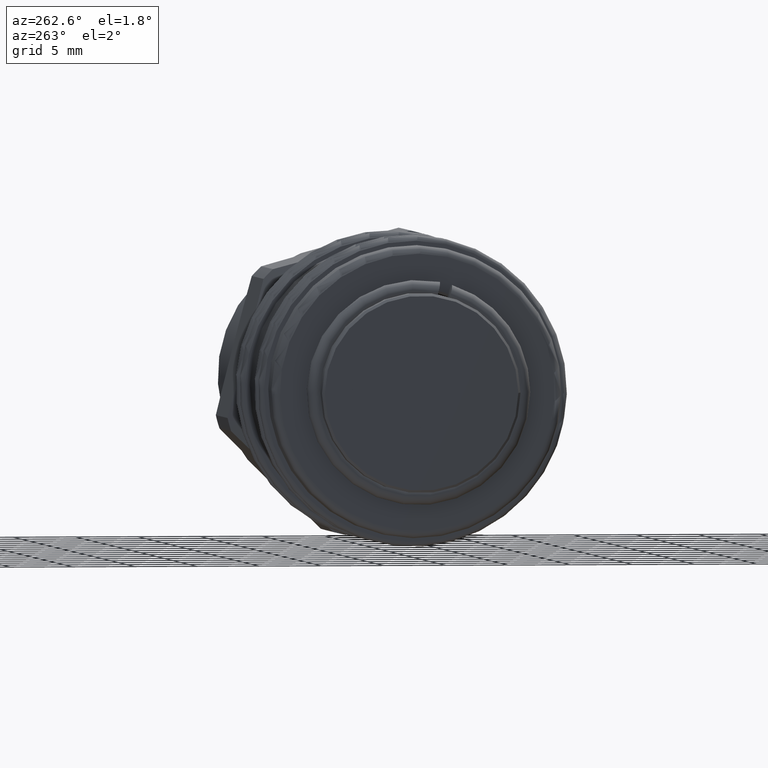
[diagram: clean part render]
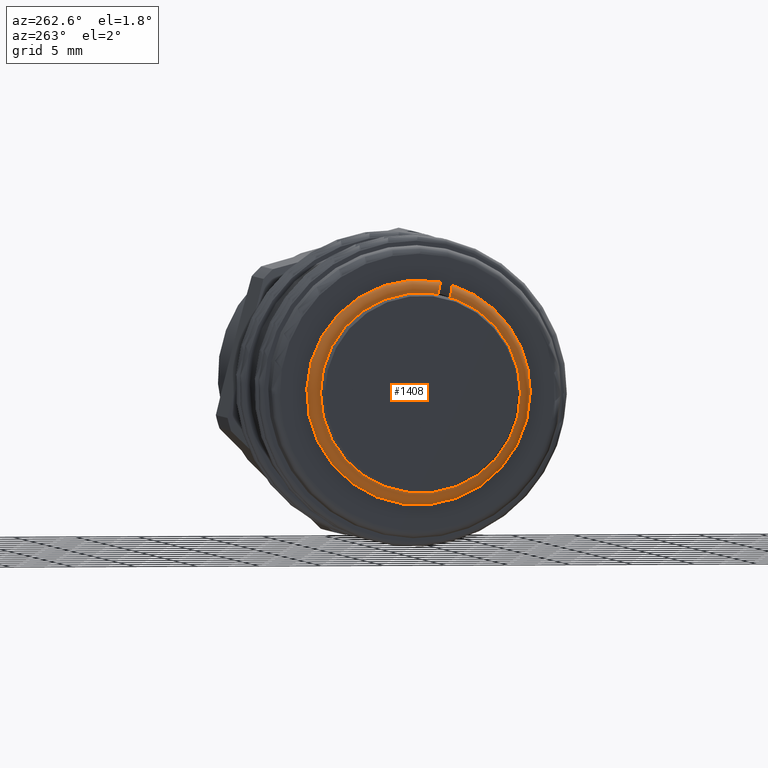
[diagram: same view with one face highlighted and labeled with its STEP entity id]
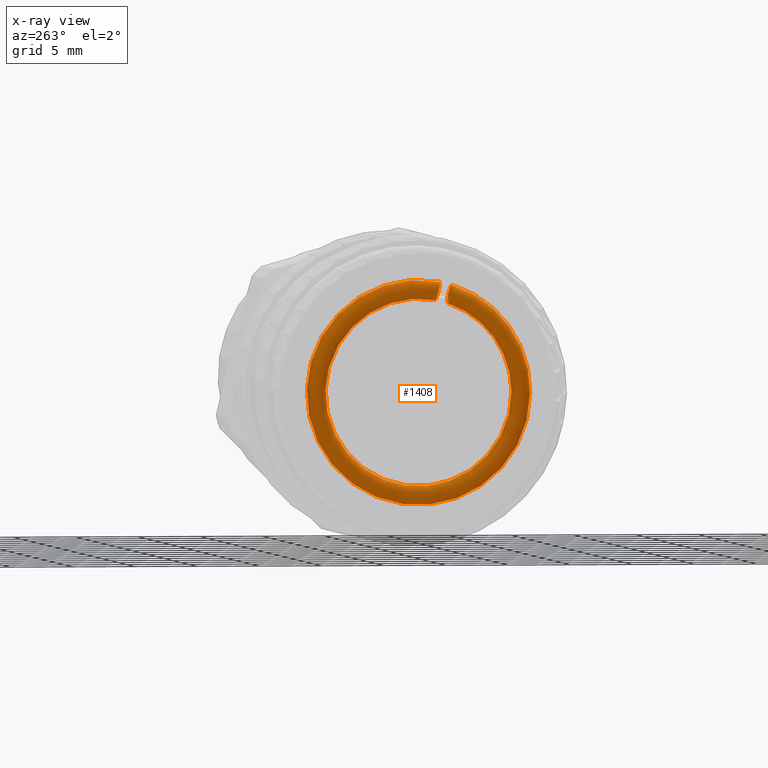
[diagram: x-ray of the same camera — body ghosted, the highlighted face saturated]
A machine part, auxiliary view. The second image highlights one B-rep face of the part: STEP entity #1408.
The next image is the same camera in x-ray: the body ghosted, the highlighted face saturated — about 0% of this face is hidden behind the body in this view.
In plain terms, the highlighted toroidal blend (fillet) surface has major radius 8.225 mm and minor (blend) radius 0.75 mm.
Its self-contained STEP definition (entity closure, byte-faithful):
#1278=CARTESIAN_POINT('',(1.149999999999998,-1.522158049766198,8.082923967942046));
#1279=VERTEX_POINT('',#1278);
#1280=CARTESIAN_POINT('',(1.899999999999999,-1.338437080986566,7.354196841276428));
#1281=VERTEX_POINT('',#1280);
#1282=CARTESIAN_POINT('',(1.149999999999998,-1.522158049766198,8.082923967942046));
#1283=CARTESIAN_POINT('',(1.149999999999998,-1.544839106053785,8.172888118947693));
#1284=CARTESIAN_POINT('',(1.171690908976136,-1.57153483385749,8.278776418720245));
#1285=CARTESIAN_POINT('',(1.242604818405064,-1.613428233662338,8.44494611110119));
#1286=CARTESIAN_POINT('',(1.304341528406777,-1.636043831204325,8.534650620739207));
#1287=CARTESIAN_POINT('',(1.435282583992063,-1.668085015129783,8.661741611234529));
#1288=CARTESIAN_POINT('',(1.527627288836386,-1.683186769557741,8.721642547883167));
#1289=CARTESIAN_POINT('',(1.698612114726414,-1.700516164085487,8.790379393573369));
#1290=CARTESIAN_POINT('',(1.807488354964822,-1.705816366384317,8.811402585523796));
#1291=CARTESIAN_POINT('',(1.899999999999998,-1.705816366384317,8.811402585523796));
#1292=CARTESIAN_POINT('',(1.992511645035174,-1.705816366384317,8.811402585523796));
#1293=CARTESIAN_POINT('',(2.101387885273583,-1.700516164085487,8.790379393573369));
#1294=CARTESIAN_POINT('',(2.272372711163611,-1.683186769557741,8.721642547883167));
#1295=CARTESIAN_POINT('',(2.364717416007934,-1.668085015129783,8.661741611234529));
#1296=CARTESIAN_POINT('',(2.49565847159322,-1.636043831204325,8.534650620739209));
#1297=CARTESIAN_POINT('',(2.557395181594933,-1.613428233662338,8.44494611110119));
#1298=CARTESIAN_POINT('',(2.62830909102386,-1.57153483385749,8.278776418720245));
#1299=CARTESIAN_POINT('',(2.649999999999999,-1.544839106053785,8.172888118947693));
#1300=CARTESIAN_POINT('',(2.649999999999999,-1.499473325619721,7.992945268415958));
#1301=CARTESIAN_POINT('',(2.628303624331471,-1.472773375853477,7.887040222277158));
#1302=CARTESIAN_POINT('',(2.557383505229888,-1.430867388329508,7.720820600851931));
#1303=CARTESIAN_POINT('',(2.495636210202128,-1.408241191890308,7.631074050809036));
#1304=CARTESIAN_POINT('',(2.364680718459949,-1.376185303196114,7.503924734016284));
#1305=CARTESIAN_POINT('',(2.272332355645207,-1.361075490272467,7.44399183343643));
#1306=CARTESIAN_POINT('',(2.101354736374963,-1.343739481072017,7.375228750722412));
#1307=CARTESIAN_POINT('',(1.992497542477783,-1.338437080986566,7.354196841276428));
#1308=CARTESIAN_POINT('',(1.899999999999999,-1.338437080986566,7.354196841276428));
#1309=B_SPLINE_CURVE_WITH_KNOTS('',3,(#1282,#1283,#1284,#1285,#1286,#1287,#1288,#1289,#1290,#1291,#1292,#1293,#1294,#1295,#1296,#1297,#1298,#1299,#1300,#1301,#1302,#1303,#1304,#1305,#1306,#1307,#1308),.UNSPECIFIED.,.F.,.U.,(4,2,2,2,3,2,2,2,2,2,2,2,4),(0.333535359220368,0.3613691173253,0.389174001859557,0.416949586586719,0.444703080097271,0.472456573607824,0.500232158334986,0.528037042869242,0.555870800974175,0.583709060205324,0.611524429667584,0.639305357402572,0.667054620145907),.UNSPECIFIED.);
#1310=EDGE_CURVE('',#1279,#1281,#1309,.T.);
#1312=CARTESIAN_POINT('',(1.899999999999999,-1.338437080986566,7.354196841276428));
#1313=CARTESIAN_POINT('',(1.807502457522214,-1.338437080986566,7.354196841276428));
#1314=CARTESIAN_POINT('',(1.698645263625035,-1.343739481072017,7.375228750722412));
#1315=CARTESIAN_POINT('',(1.527667644354791,-1.361075490272467,7.44399183343643));
#1316=CARTESIAN_POINT('',(1.435319281540049,-1.376185303196114,7.503924734016284));
#1317=CARTESIAN_POINT('',(1.30436378979787,-1.408241191890308,7.631074050809036));
#1318=CARTESIAN_POINT('',(1.24261649477011,-1.430867388329508,7.720820600851931));
#1319=CARTESIAN_POINT('',(1.171696375668526,-1.472773375853476,7.887040222277158));
#1320=CARTESIAN_POINT('',(1.149999999999998,-1.499473325619721,7.992945268415958));
#1321=CARTESIAN_POINT('',(1.149999999999998,-1.522158049766198,8.082923967942046));
#1322=B_SPLINE_CURVE_WITH_KNOTS('',3,(#1312,#1313,#1314,#1315,#1316,#1317,#1318,#1319,#1320,#1321),.UNSPECIFIED.,.F.,.U.,(4,2,2,2,4),(0.667054620145907,0.694803882889242,0.72258481062423,0.75040018008649,0.778238439317639),.UNSPECIFIED.);
#1323=EDGE_CURVE('',#1281,#1279,#1322,.T.);
#1333=CARTESIAN_POINT('',(1.149999999999998,-2.491816735450886,7.838461223794303));
#1334=VERTEX_POINT('',#1333);
#1335=CARTESIAN_POINT('',(1.899999999999998,-2.308095766671254,7.109734097128685));
#1336=VERTEX_POINT('',#1335);
#1337=CARTESIAN_POINT('',(1.149999999999998,-2.491816735450886,7.838461223794303));
#1338=CARTESIAN_POINT('',(1.149999999999998,-2.469132011304409,7.748482524268216));
#1339=CARTESIAN_POINT('',(1.171696375668526,-2.442432061538164,7.642577478129416));
#1340=CARTESIAN_POINT('',(1.24261649477011,-2.400526074014196,7.47635785670419));
#1341=CARTESIAN_POINT('',(1.30436378979787,-2.377899877574996,7.386611306661295));
#1342=CARTESIAN_POINT('',(1.435319281540049,-2.345843988880802,7.259461989868542));
#1343=CARTESIAN_POINT('',(1.527667644354791,-2.330734175957155,7.199529089288689));
#1344=CARTESIAN_POINT('',(1.698645263625035,-2.313398166756704,7.130766006574671));
#1345=CARTESIAN_POINT('',(1.807502457522214,-2.308095766671254,7.109734097128685));
#1346=CARTESIAN_POINT('',(1.899999999999998,-2.308095766671254,7.109734097128685));
#1347=B_SPLINE_CURVE_WITH_KNOTS('',3,(#1337,#1338,#1339,#1340,#1341,#1342,#1343,#1344,#1345,#1346),.UNSPECIFIED.,.F.,.U.,(4,2,2,2,4),(0.111167720876903,0.139005980108053,0.166821349570313,0.1946022773053,0.222351540048636),.UNSPECIFIED.);
#1348=EDGE_CURVE('',#1334,#1336,#1347,.T.);
#1350=CARTESIAN_POINT('',(1.899999999999998,-2.308095766671254,7.109734097128685));
#1351=CARTESIAN_POINT('',(1.992497542477783,-2.308095766671254,7.109734097128685));
#1352=CARTESIAN_POINT('',(2.101354736374963,-2.313398166756704,7.130766006574671));
#1353=CARTESIAN_POINT('',(2.272332355645207,-2.330734175957155,7.199529089288689));
#1354=CARTESIAN_POINT('',(2.364680718459948,-2.345843988880802,7.259461989868543));
#1355=CARTESIAN_POINT('',(2.495636210202128,-2.377899877574996,7.386611306661295));
#1356=CARTESIAN_POINT('',(2.557383505229888,-2.400526074014196,7.47635785670419));
#1357=CARTESIAN_POINT('',(2.628303624331471,-2.442432061538165,7.642577478129418));
#1358=CARTESIAN_POINT('',(2.649999999999999,-2.469132011304409,7.748482524268217));
#1359=CARTESIAN_POINT('',(2.649999999999999,-2.514497791738473,7.928425374799952));
#1360=CARTESIAN_POINT('',(2.62830909102386,-2.541193519542178,8.034313674572504));
#1361=CARTESIAN_POINT('',(2.557395181594932,-2.583086919347026,8.200483366953451));
#1362=CARTESIAN_POINT('',(2.49565847159322,-2.605702516889013,8.290187876591467));
#1363=CARTESIAN_POINT('',(2.364717416007934,-2.637743700814471,8.417278867086788));
#1364=CARTESIAN_POINT('',(2.272372711163611,-2.652845455242429,8.477179803735428));
#1365=CARTESIAN_POINT('',(2.101387885273583,-2.670174849770175,8.545916649425628));
#1366=CARTESIAN_POINT('',(1.992511645035174,-2.675475052069005,8.566939841376055));
#1367=CARTESIAN_POINT('',(1.899999999999998,-2.675475052069005,8.566939841376055));
#1368=CARTESIAN_POINT('',(1.807488354964822,-2.675475052069005,8.566939841376055));
#1369=CARTESIAN_POINT('',(1.698612114726413,-2.670174849770175,8.545916649425628));
#1370=CARTESIAN_POINT('',(1.527627288836386,-2.652845455242429,8.477179803735428));
#1371=CARTESIAN_POINT('',(1.435282583992063,-2.637743700814471,8.417278867086788));
#1372=CARTESIAN_POINT('',(1.304341528406776,-2.605702516889013,8.290187876591467));
#1373=CARTESIAN_POINT('',(1.242604818405064,-2.583086919347026,8.200483366953449));
#1374=CARTESIAN_POINT('',(1.171690908976136,-2.541193519542178,8.034313674572502));
#1375=CARTESIAN_POINT('',(1.149999999999998,-2.514497791738473,7.92842537479995));
#1376=CARTESIAN_POINT('',(1.149999999999998,-2.491816735450886,7.838461223794303));
#1377=B_SPLINE_CURVE_WITH_KNOTS('',3,(#1350,#1351,#1352,#1353,#1354,#1355,#1356,#1357,#1358,#1359,#1360,#1361,#1362,#1363,#1364,#1365,#1366,#1367,#1368,#1369,#1370,#1371,#1372,#1373,#1374,#1375,#1376),.UNSPECIFIED.,.F.,.U.,(4,2,2,2,2,2,2,2,3,2,2,2,4),(0.222351540048636,0.250100802791971,0.277881730526958,0.305697099989218,0.333535359220368,0.3613691173253,0.389174001859557,0.416949586586718,0.444703080097271,0.472456573607824,0.500232158334985,0.528037042869242,0.555870800974174),.UNSPECIFIED.);
#1378=EDGE_CURVE('',#1336,#1334,#1377,.T.);
#1383=CARTESIAN_POINT('',(1.900000000000003,-1.008423E-016,9.526865E-016));
#1384=DIRECTION('',(1.0,-6.123234E-017,5.023014E-016));
#1385=DIRECTION('',(5.020299E-016,0.244462744147741,-0.969658685684688));
#1386=AXIS2_PLACEMENT_3D('',#1383,#1384,#1385);
#1387=TOROIDAL_SURFACE('',#1386,8.225,0.75);
#1388=ORIENTED_EDGE('',*,*,#1310,.T.);
#1389=CARTESIAN_POINT('',(1.900000000000003,-1.008423E-016,9.526865E-016));
#1390=DIRECTION('',(-1.0,0.0,0.0));
#1391=DIRECTION('',(0.0,-1.0,0.0));
#1392=AXIS2_PLACEMENT_3D('',#1389,#1390,#1391);
#1393=CIRCLE('',#1392,7.475000000000001);
#1394=EDGE_CURVE('',#1281,#1336,#1393,.T.);
#1395=ORIENTED_EDGE('',*,*,#1394,.T.);
#1396=ORIENTED_EDGE('',*,*,#1378,.T.);
#1397=ORIENTED_EDGE('',*,*,#1348,.T.);
#1398=CARTESIAN_POINT('',(1.900000000000003,-1.008423E-016,9.526865E-016));
#1399=DIRECTION('',(-1.0,0.0,0.0));
#1400=DIRECTION('',(0.0,-1.0,0.0));
#1401=AXIS2_PLACEMENT_3D('',#1398,#1399,#1400);
#1402=CIRCLE('',#1401,7.475000000000001);
#1403=EDGE_CURVE('',#1281,#1336,#1402,.T.);
#1404=ORIENTED_EDGE('',*,*,#1403,.F.);
#1405=ORIENTED_EDGE('',*,*,#1323,.T.);
#1406=EDGE_LOOP('',(#1388,#1395,#1396,#1397,#1404,#1405));
#1407=FACE_OUTER_BOUND('',#1406,.T.);
#1408=ADVANCED_FACE('',(#1407),#1387,.T.);